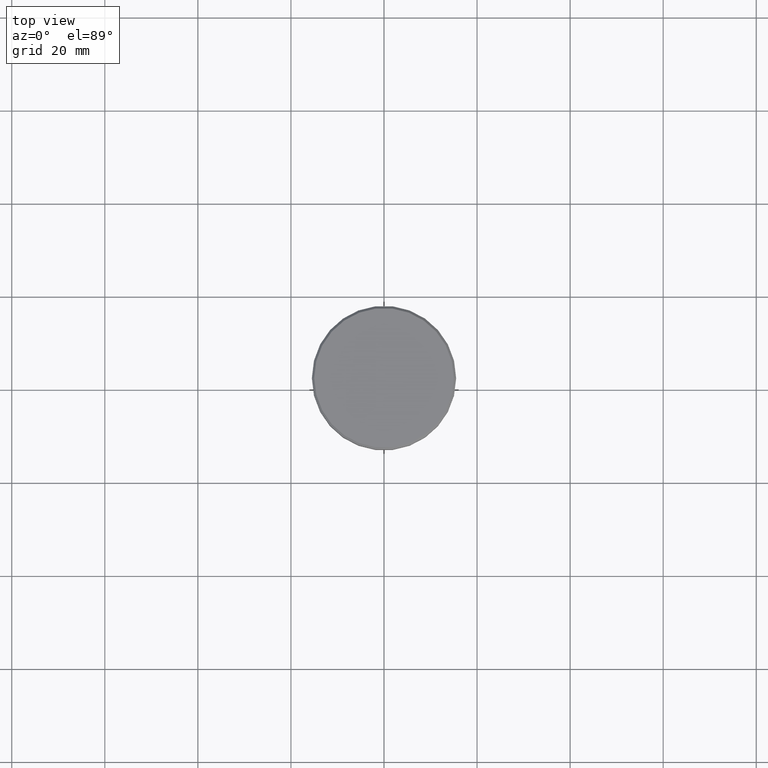
[diagram: clean part render]
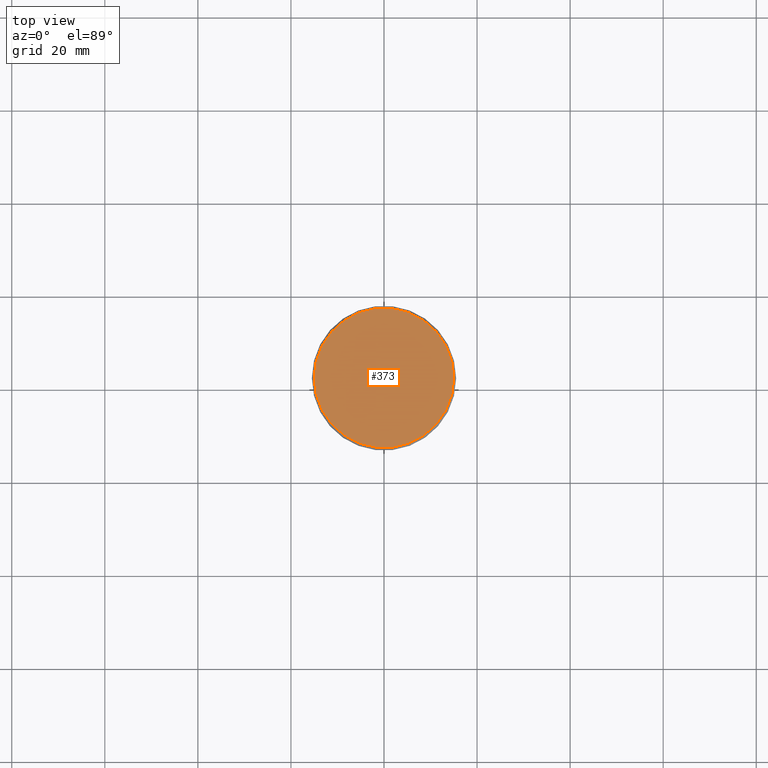
[diagram: same view with one face highlighted and labeled with its STEP entity id]
A machine part, top view. The second image highlights one B-rep face of the part: STEP entity #373.
In plain terms, the highlighted planar face has unit normal (0, -0, 1).
Its self-contained STEP definition (entity closure, byte-faithful):
#69 = VERTEX_POINT ( 'NONE', #88 ) ;
#88 = CARTESIAN_POINT ( 'NONE',  ( -14.99999999999997158, 0.000000000000000000, 0.000000000000000000 ) ) ;
#162 = DIRECTION ( 'NONE',  ( -0.000000000000000000, -0.000000000000000000, 1.000000000000000000 ) ) ;
#261 = CARTESIAN_POINT ( 'NONE',  ( 0.000000000000000000, 0.000000000000000000, 0.000000000000000000 ) ) ;
#310 = PLANE ( 'NONE',  #395 ) ;
#339 = EDGE_CURVE ( 'NONE', #69, #457, #527, .T. ) ;
#351 = EDGE_LOOP ( 'NONE', ( #637, #560 ) ) ;
#373 = ADVANCED_FACE ( 'NONE', ( #495 ), #310, .T. ) ;
#393 = DIRECTION ( 'NONE',  ( 0.000000000000000000, -0.000000000000000000, 1.000000000000000000 ) ) ;
#395 = AXIS2_PLACEMENT_3D ( 'NONE', #479, #393, #1053 ) ;
#457 = VERTEX_POINT ( 'NONE', #808 ) ;
#479 = CARTESIAN_POINT ( 'NONE',  ( 0.000000000000000000, 0.000000000000000000, 0.000000000000000000 ) ) ;
#495 = FACE_OUTER_BOUND ( 'NONE', #351, .T. ) ;
#527 = CIRCLE ( 'NONE', #1029, 14.99999999999997158 ) ;
#559 = EDGE_CURVE ( 'NONE', #457, #69, #1141, .T. ) ;
#560 = ORIENTED_EDGE ( 'NONE', *, *, #559, .T. ) ;
#595 = CARTESIAN_POINT ( 'NONE',  ( 0.000000000000000000, 0.000000000000000000, 0.000000000000000000 ) ) ;
#631 = AXIS2_PLACEMENT_3D ( 'NONE', #261, #162, #903 ) ;
#637 = ORIENTED_EDGE ( 'NONE', *, *, #339, .T. ) ;
#808 = CARTESIAN_POINT ( 'NONE',  ( 14.99999999999997158, 1.867586368699711798E-15, 0.000000000000000000 ) ) ;
#876 = DIRECTION ( 'NONE',  ( -0.000000000000000000, -0.000000000000000000, 1.000000000000000000 ) ) ;
#903 = DIRECTION ( 'NONE',  ( 1.000000000000000000, 0.000000000000000000, 0.000000000000000000 ) ) ;
#1029 = AXIS2_PLACEMENT_3D ( 'NONE', #595, #876, #1131 ) ;
#1053 = DIRECTION ( 'NONE',  ( 1.000000000000000000, 0.000000000000000000, 0.000000000000000000 ) ) ;
#1131 = DIRECTION ( 'NONE',  ( 1.000000000000000000, 0.000000000000000000, 0.000000000000000000 ) ) ;
#1141 = CIRCLE ( 'NONE', #631, 14.99999999999997158 ) ;